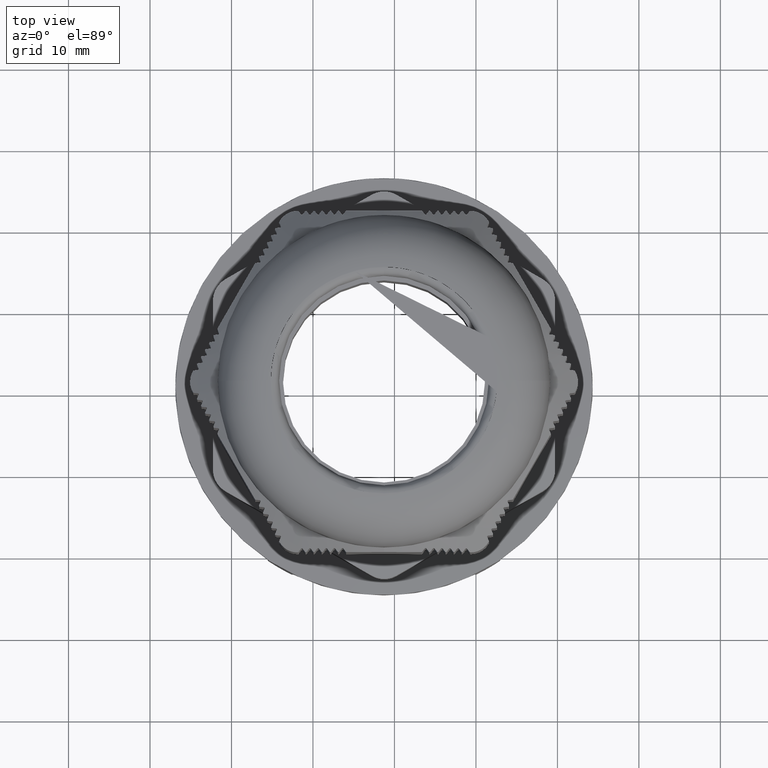
[diagram: clean part render]
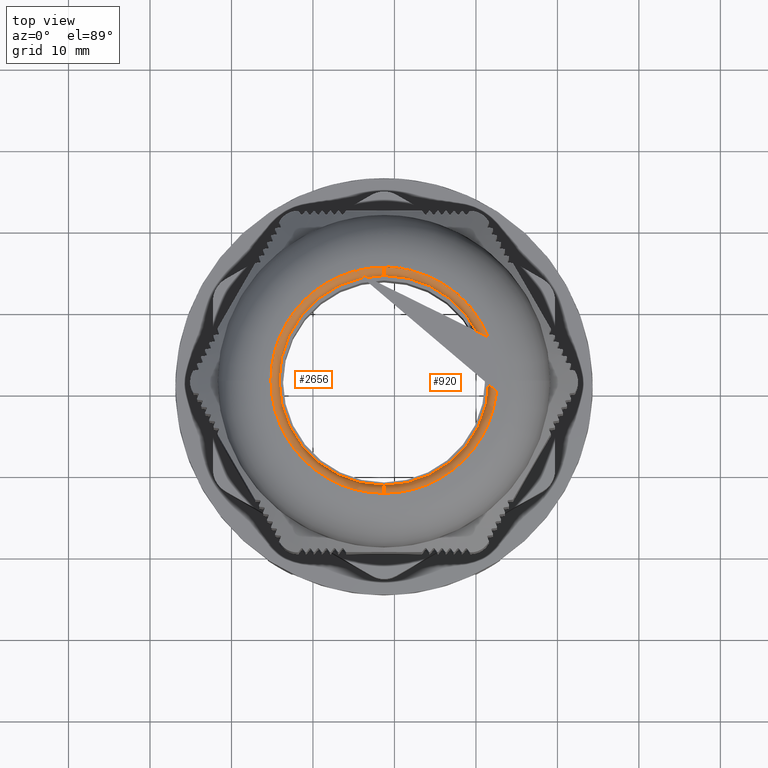
[diagram: same view with one multi-face feature highlighted, each face labeled with its STEP entity id]
A machine part, top view. The highlighted faces form ONE feature: a constant-radius fillet chain: 2 tangent blend faces with common blend radius 1 mm. The faces share edges in the B-rep.
Their STEP definitions:
[1] entity #2656 (Torus):
#710 = EDGE_CURVE ( 'NONE', #21019, #21104, #22746, .T. ) ;
#723 = EDGE_CURVE ( 'NONE', #21038, #21103, #22761, .T. ) ;
#745 = EDGE_CURVE ( 'NONE', #21019, #20977, #22794, .T. ) ;
#2603 = EDGE_CURVE ( 'NONE', #21103, #21104, #16089, .T. ) ;
#2616 = EDGE_CURVE ( 'NONE', #20977, #21038, #16074, .T. ) ;
#2656 = ADVANCED_FACE ( 'NONE', ( #16626 ), #16174, .T. ) ;
#3126 = EDGE_LOOP ( 'NONE', ( #19319, #19391, #19379, #19350, #19382 ) ) ;
#8320 = DIRECTION ( 'NONE',  ( 1.000000000000000000, 1.224646799147356900E-016, 5.001004615426942100E-016 ) ) ;
#8328 = DIRECTION ( 'NONE',  ( 0.0000000000000000000, 0.0000000000000000000, -1.000000000000000000 ) ) ;
#8346 = CARTESIAN_POINT ( 'NONE',  ( -671.2819160884045000, 317.1244562443065400, 52.42358769562345300 ) ) ;
#8362 = DIRECTION ( 'NONE',  ( 0.0000000000000000000, 0.0000000000000000000, 1.000000000000000000 ) ) ;
#8372 = CARTESIAN_POINT ( 'NONE',  ( -671.2819160884045000, 344.8744562443066600, 52.42358769562343900 ) ) ;
#8376 = DIRECTION ( 'NONE',  ( -1.000000000000000000, -3.751507074528232700E-031, -5.001004615426943100E-016 ) ) ;
#8436 = DIRECTION ( 'NONE',  ( -1.000000000000000000, 0.0000000000000000000, 0.0000000000000000000 ) ) ;
#8451 = DIRECTION ( 'NONE',  ( 0.0000000000000000000, 0.0000000000000000000, -1.000000000000000000 ) ) ;
#8472 = CARTESIAN_POINT ( 'NONE',  ( -671.2819160884045000, 330.9994562443066000, 52.42358769562343900 ) ) ;
#16074 = CIRCLE ( 'NONE', #16083, 12.87499999999997000 ) ;
#16083 = AXIS2_PLACEMENT_3D ( 'NONE', #16478, #16481, #16492 ) ;
#16089 = CIRCLE ( 'NONE', #16100, 13.87500000000430100 ) ;
#16100 = AXIS2_PLACEMENT_3D ( 'NONE', #16417, #16429, #16420 ) ;
#16143 = AXIS2_PLACEMENT_3D ( 'NONE', #16705, #16666, #16692 ) ;
#16174 = TOROIDAL_SURFACE ( 'NONE', #16143, 13.87500000000008200, 0.9999999999999731300 ) ;
#16417 = CARTESIAN_POINT ( 'NONE',  ( -671.2819160884045000, 330.9994562443066000, 53.42358769562342500 ) ) ;
#16420 = DIRECTION ( 'NONE',  ( 0.0000000000000000000, 1.000000000000000000, -5.001004615427083100E-016 ) ) ;
#16429 = DIRECTION ( 'NONE',  ( -5.001004615426943100E-016, 7.501506923140403800E-016, 1.000000000000000000 ) ) ;
#16478 = CARTESIAN_POINT ( 'NONE',  ( -671.2819160884045000, 330.9994562443066000, 52.42358769562343900 ) ) ;
#16481 = DIRECTION ( 'NONE',  ( 0.0000000000000000000, 0.0000000000000000000, -1.000000000000000000 ) ) ;
#16492 = DIRECTION ( 'NONE',  ( -1.000000000000000000, 0.0000000000000000000, 0.0000000000000000000 ) ) ;
#16626 = FACE_OUTER_BOUND ( 'NONE', #3126, .T. ) ;
#16666 = DIRECTION ( 'NONE',  ( 5.001004615426943100E-016, -7.501506923140403800E-016, -1.000000000000000000 ) ) ;
#16692 = DIRECTION ( 'NONE',  ( -9.142328164832278000E-032, 1.000000000000000000, -7.501506923140403800E-016 ) ) ;
#16705 = CARTESIAN_POINT ( 'NONE',  ( -671.2819160884045000, 330.9994562443066000, 52.42358769562344600 ) ) ;
#18700 = CARTESIAN_POINT ( 'NONE',  ( -684.1569160884045000, 330.9994562443066000, 52.42358769562343900 ) ) ;
#19319 = ORIENTED_EDGE ( 'NONE', *, *, #710, .F. ) ;
#19350 = ORIENTED_EDGE ( 'NONE', *, *, #723, .T. ) ;
#19379 = ORIENTED_EDGE ( 'NONE', *, *, #2616, .T. ) ;
#19382 = ORIENTED_EDGE ( 'NONE', *, *, #2603, .T. ) ;
#19391 = ORIENTED_EDGE ( 'NONE', *, *, #745, .T. ) ;
#20129 = CARTESIAN_POINT ( 'NONE',  ( -671.2819160884045000, 343.8744562443065400, 52.42358769562343900 ) ) ;
#20135 = CARTESIAN_POINT ( 'NONE',  ( -671.2819160884045000, 318.1244562443066600, 52.42358769562343900 ) ) ;
#20192 = CARTESIAN_POINT ( 'NONE',  ( -671.2819160884045000, 317.1244562443043800, 53.42358769562342500 ) ) ;
#20203 = CARTESIAN_POINT ( 'NONE',  ( -671.2819160884045000, 344.8744562443088200, 53.42358769562341800 ) ) ;
#20977 = VERTEX_POINT ( 'NONE', #18700 ) ;
#21019 = VERTEX_POINT ( 'NONE', #20135 ) ;
#21038 = VERTEX_POINT ( 'NONE', #20129 ) ;
#21103 = VERTEX_POINT ( 'NONE', #20203 ) ;
#21104 = VERTEX_POINT ( 'NONE', #20192 ) ;
#22732 = AXIS2_PLACEMENT_3D ( 'NONE', #8346, #8320, #8328 ) ;
#22746 = CIRCLE ( 'NONE', #22732, 0.9999999999999731300 ) ;
#22761 = CIRCLE ( 'NONE', #22762, 0.9999999999999731300 ) ;
#22762 = AXIS2_PLACEMENT_3D ( 'NONE', #8372, #8376, #8362 ) ;
#22794 = CIRCLE ( 'NONE', #22832, 12.87499999999997000 ) ;
#22832 = AXIS2_PLACEMENT_3D ( 'NONE', #8472, #8451, #8436 ) ;
[2] entity #920 (Torus):
#46 = EDGE_CURVE ( 'NONE', #21104, #21103, #22930, .T. ) ;
#701 = EDGE_CURVE ( 'NONE', #21038, #20988, #22753, .T. ) ;
#710 = EDGE_CURVE ( 'NONE', #21019, #21104, #22746, .T. ) ;
#723 = EDGE_CURVE ( 'NONE', #21038, #21103, #22761, .T. ) ;
#729 = EDGE_CURVE ( 'NONE', #20988, #21019, #22730, .T. ) ;
#920 = ADVANCED_FACE ( 'NONE', ( #9204 ), #22828, .T. ) ;
#3247 = EDGE_LOOP ( 'NONE', ( #19495, #19509, #19519, #19546, #19486 ) ) ;
#4091 = DIRECTION ( 'NONE',  ( -5.001004615426943100E-016, 7.501506923140403800E-016, 1.000000000000000000 ) ) ;
#4117 = CARTESIAN_POINT ( 'NONE',  ( -671.2819160884045000, 330.9994562443066000, 53.42358769562342500 ) ) ;
#4147 = DIRECTION ( 'NONE',  ( 0.0000000000000000000, 1.000000000000000000, -5.001004615427083100E-016 ) ) ;
#8302 = CARTESIAN_POINT ( 'NONE',  ( -671.2819160884045000, 330.9994562443066000, 52.42358769562343900 ) ) ;
#8318 = DIRECTION ( 'NONE',  ( 0.0000000000000000000, 0.0000000000000000000, -1.000000000000000000 ) ) ;
#8320 = DIRECTION ( 'NONE',  ( 1.000000000000000000, 1.224646799147356900E-016, 5.001004615426942100E-016 ) ) ;
#8328 = DIRECTION ( 'NONE',  ( 0.0000000000000000000, 0.0000000000000000000, -1.000000000000000000 ) ) ;
#8334 = DIRECTION ( 'NONE',  ( -1.000000000000000000, 0.0000000000000000000, 0.0000000000000000000 ) ) ;
#8346 = CARTESIAN_POINT ( 'NONE',  ( -671.2819160884045000, 317.1244562443065400, 52.42358769562345300 ) ) ;
#8362 = DIRECTION ( 'NONE',  ( 0.0000000000000000000, 0.0000000000000000000, 1.000000000000000000 ) ) ;
#8371 = DIRECTION ( 'NONE',  ( 0.0000000000000000000, 0.0000000000000000000, -1.000000000000000000 ) ) ;
#8372 = CARTESIAN_POINT ( 'NONE',  ( -671.2819160884045000, 344.8744562443066600, 52.42358769562343900 ) ) ;
#8376 = DIRECTION ( 'NONE',  ( -1.000000000000000000, -3.751507074528232700E-031, -5.001004615426943100E-016 ) ) ;
#8387 = DIRECTION ( 'NONE',  ( -1.000000000000000000, 0.0000000000000000000, 0.0000000000000000000 ) ) ;
#8390 = CARTESIAN_POINT ( 'NONE',  ( -671.2819160884045000, 330.9994562443066000, 52.42358769562343900 ) ) ;
#9204 = FACE_OUTER_BOUND ( 'NONE', #3247, .T. ) ;
#9221 = CARTESIAN_POINT ( 'NONE',  ( -671.2819160884045000, 330.9994562443066000, 52.42358769562344600 ) ) ;
#9241 = DIRECTION ( 'NONE',  ( 5.001004615426943100E-016, -7.501506923140403800E-016, -1.000000000000000000 ) ) ;
#9251 = DIRECTION ( 'NONE',  ( -9.142328164832278000E-032, 1.000000000000000000, -7.501506923140403800E-016 ) ) ;
#18661 = CARTESIAN_POINT ( 'NONE',  ( -658.4069160884045000, 330.9994562443066000, 52.42358769562343900 ) ) ;
#19486 = ORIENTED_EDGE ( 'NONE', *, *, #723, .F. ) ;
#19495 = ORIENTED_EDGE ( 'NONE', *, *, #701, .T. ) ;
#19509 = ORIENTED_EDGE ( 'NONE', *, *, #729, .T. ) ;
#19519 = ORIENTED_EDGE ( 'NONE', *, *, #710, .T. ) ;
#19546 = ORIENTED_EDGE ( 'NONE', *, *, #46, .T. ) ;
#20129 = CARTESIAN_POINT ( 'NONE',  ( -671.2819160884045000, 343.8744562443065400, 52.42358769562343900 ) ) ;
#20135 = CARTESIAN_POINT ( 'NONE',  ( -671.2819160884045000, 318.1244562443066600, 52.42358769562343900 ) ) ;
#20192 = CARTESIAN_POINT ( 'NONE',  ( -671.2819160884045000, 317.1244562443043800, 53.42358769562342500 ) ) ;
#20203 = CARTESIAN_POINT ( 'NONE',  ( -671.2819160884045000, 344.8744562443088200, 53.42358769562341800 ) ) ;
#20988 = VERTEX_POINT ( 'NONE', #18661 ) ;
#21019 = VERTEX_POINT ( 'NONE', #20135 ) ;
#21038 = VERTEX_POINT ( 'NONE', #20129 ) ;
#21103 = VERTEX_POINT ( 'NONE', #20203 ) ;
#21104 = VERTEX_POINT ( 'NONE', #20192 ) ;
#22730 = CIRCLE ( 'NONE', #22760, 12.87499999999997000 ) ;
#22732 = AXIS2_PLACEMENT_3D ( 'NONE', #8346, #8320, #8328 ) ;
#22746 = CIRCLE ( 'NONE', #22732, 0.9999999999999731300 ) ;
#22753 = CIRCLE ( 'NONE', #22774, 12.87499999999997000 ) ;
#22760 = AXIS2_PLACEMENT_3D ( 'NONE', #8390, #8371, #8387 ) ;
#22761 = CIRCLE ( 'NONE', #22762, 0.9999999999999731300 ) ;
#22762 = AXIS2_PLACEMENT_3D ( 'NONE', #8372, #8376, #8362 ) ;
#22774 = AXIS2_PLACEMENT_3D ( 'NONE', #8302, #8318, #8334 ) ;
#22828 = TOROIDAL_SURFACE ( 'NONE', #22846, 13.87500000000008200, 0.9999999999999731300 ) ;
#22846 = AXIS2_PLACEMENT_3D ( 'NONE', #9221, #9241, #9251 ) ;
#22930 = CIRCLE ( 'NONE', #22942, 13.87500000000430100 ) ;
#22942 = AXIS2_PLACEMENT_3D ( 'NONE', #4117, #4091, #4147 ) ;